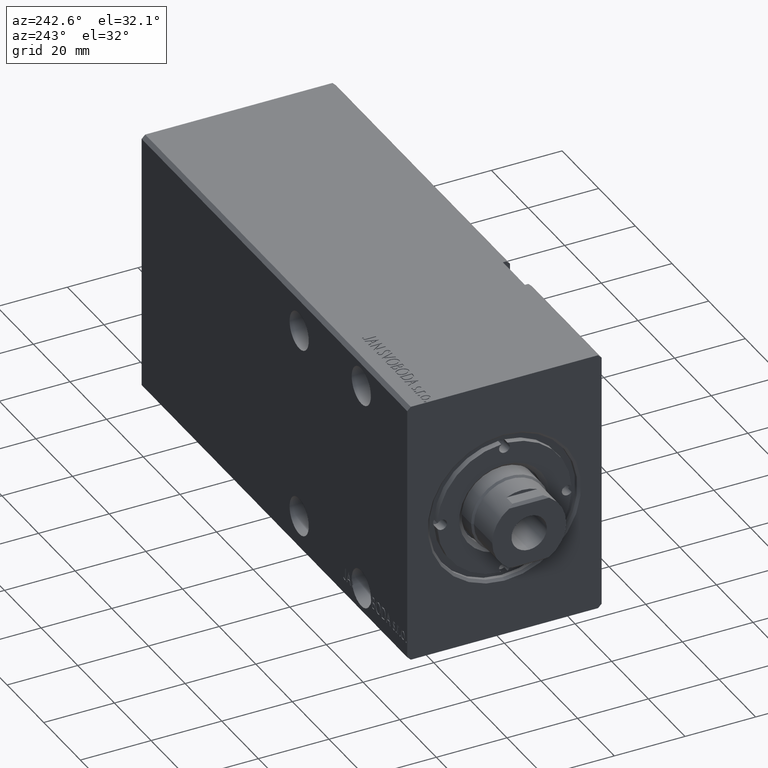
[diagram: clean part render]
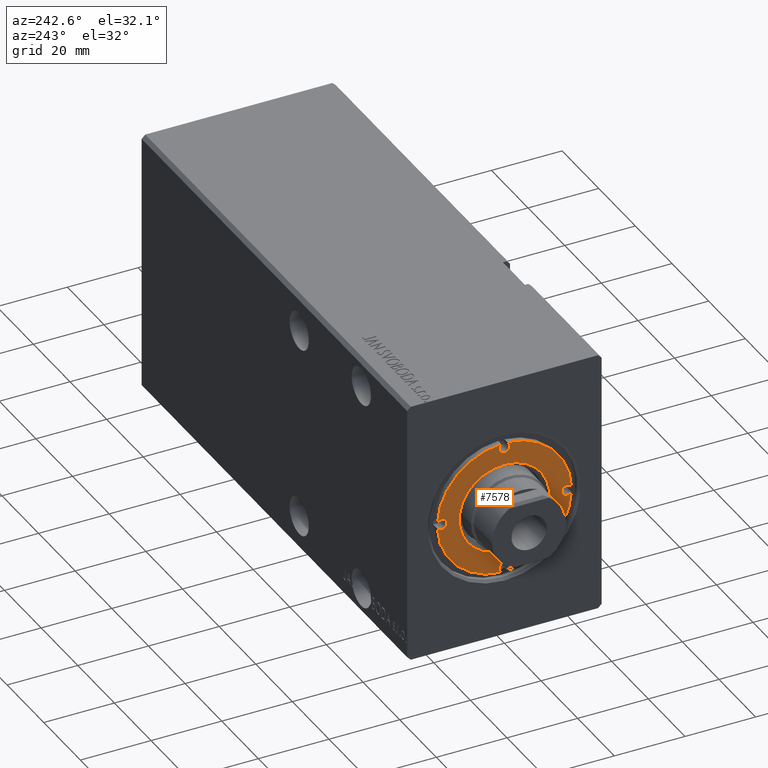
[diagram: same view with one face highlighted and labeled with its STEP entity id]
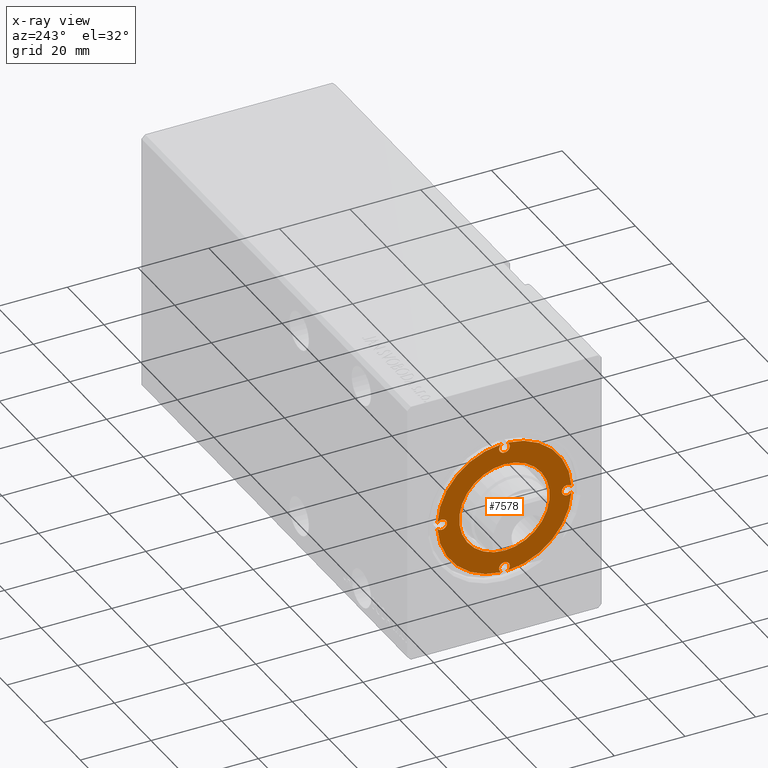
[diagram: x-ray of the same camera — body ghosted, the highlighted face saturated]
A machine part, auxiliary view. The second image highlights one B-rep face of the part: STEP entity #7578.
The next image is the same camera in x-ray: the body ghosted, the highlighted face saturated — about 0% of this face is hidden behind the body in this view.
In plain terms, the highlighted planar face has unit normal (-1, 0, 0).
Its self-contained STEP definition (entity closure, byte-faithful):
#218 = DIRECTION ( 'NONE',  ( 1.000000000000000000, 0.000000000000000000, 0.000000000000000000 ) ) ;
#245 = AXIS2_PLACEMENT_3D ( 'NONE', #20135, #32311, #24699 ) ;
#474 = EDGE_CURVE ( 'NONE', #15193, #19784, #24125, .T. ) ;
#1111 = AXIS2_PLACEMENT_3D ( 'NONE', #19153, #28732, #4135 ) ;
#1666 = VERTEX_POINT ( 'NONE', #23500 ) ;
#1744 = CARTESIAN_POINT ( 'NONE',  ( 0.000000000000000000, -17.75000000000000000, 11.79999999999999893 ) ) ;
#2462 = CARTESIAN_POINT ( 'NONE',  ( -18.98063380281688950, 0.8576365450261722589, 11.79999999999999893 ) ) ;
#2919 = EDGE_LOOP ( 'NONE', ( #13761, #28195 ) ) ;
#3009 = VERTEX_POINT ( 'NONE', #18647 ) ;
#3063 = CARTESIAN_POINT ( 'NONE',  ( 0.000000000000000000, -17.75000000000000000, 11.79999999999999893 ) ) ;
#3350 = ORIENTED_EDGE ( 'NONE', *, *, #12532, .F. ) ;
#3385 = CARTESIAN_POINT ( 'NONE',  ( -1.499999999999996891, 17.75000000000000000, 11.79999999999999893 ) ) ;
#3516 = EDGE_CURVE ( 'NONE', #3009, #17894, #10671, .T. ) ;
#3611 = CIRCLE ( 'NONE', #20193, 1.499999999999996891 ) ;
#3669 = DIRECTION ( 'NONE',  ( 1.000000000000000000, 0.000000000000000000, 0.000000000000000000 ) ) ;
#3676 = EDGE_CURVE ( 'NONE', #18181, #1666, #28565, .T. ) ;
#3931 = ORIENTED_EDGE ( 'NONE', *, *, #3676, .F. ) ;
#4135 = DIRECTION ( 'NONE',  ( 1.000000000000000000, 0.000000000000000000, 0.000000000000000000 ) ) ;
#4391 = CARTESIAN_POINT ( 'NONE',  ( 0.000000000000000000, 0.000000000000000000, 11.79999999999999893 ) ) ;
#4835 = EDGE_CURVE ( 'NONE', #5453, #1666, #19994, .T. ) ;
#5119 = DIRECTION ( 'NONE',  ( 1.000000000000000000, 0.000000000000000000, 0.000000000000000000 ) ) ;
#5453 = VERTEX_POINT ( 'NONE', #24728 ) ;
#5499 = CARTESIAN_POINT ( 'NONE',  ( 0.000000000000000000, 0.000000000000000000, 11.79999999999999893 ) ) ;
#5810 = DIRECTION ( 'NONE',  ( -0.000000000000000000, -0.000000000000000000, 1.000000000000000000 ) ) ;
#6115 = VERTEX_POINT ( 'NONE', #38730 ) ;
#6345 = CARTESIAN_POINT ( 'NONE',  ( 0.000000000000000000, 0.000000000000000000, 11.79999999999999893 ) ) ;
#6617 = CIRCLE ( 'NONE', #20685, 1.499999999999997780 ) ;
#6730 = CIRCLE ( 'NONE', #9922, 1.499999999999996891 ) ;
#6777 = AXIS2_PLACEMENT_3D ( 'NONE', #12609, #5810, #33983 ) ;
#6890 = AXIS2_PLACEMENT_3D ( 'NONE', #10895, #33097, #32889 ) ;
#6982 = EDGE_CURVE ( 'NONE', #10158, #19784, #6617, .T. ) ;
#7223 = CARTESIAN_POINT ( 'NONE',  ( 0.000000000000000000, 0.000000000000000000, 11.79999999999999893 ) ) ;
#7578 = ADVANCED_FACE ( 'NONE', ( #11108, #35303 ), #7916, .T. ) ;
#7916 = PLANE ( 'NONE',  #245 ) ;
#8090 = CARTESIAN_POINT ( 'NONE',  ( -0.8576365450261641543, -18.98063380281689305, 11.79999999999999893 ) ) ;
#8660 = AXIS2_PLACEMENT_3D ( 'NONE', #23868, #12064, #36051 ) ;
#9285 = DIRECTION ( 'NONE',  ( -0.000000000000000000, -0.000000000000000000, 1.000000000000000000 ) ) ;
#9357 = EDGE_CURVE ( 'NONE', #17419, #6115, #19814, .T. ) ;
#9571 = ORIENTED_EDGE ( 'NONE', *, *, #474, .T. ) ;
#9596 = EDGE_CURVE ( 'NONE', #6115, #17419, #35113, .T. ) ;
#9916 = VERTEX_POINT ( 'NONE', #30637 ) ;
#9922 = AXIS2_PLACEMENT_3D ( 'NONE', #1744, #23113, #5119 ) ;
#9995 = CARTESIAN_POINT ( 'NONE',  ( 0.000000000000000000, 0.000000000000000000, 11.79999999999999893 ) ) ;
#10026 = EDGE_CURVE ( 'NONE', #39485, #11599, #30123, .T. ) ;
#10158 = VERTEX_POINT ( 'NONE', #37791 ) ;
#10364 = DIRECTION ( 'NONE',  ( 0.000000000000000000, 0.000000000000000000, 1.000000000000000000 ) ) ;
#10524 = VERTEX_POINT ( 'NONE', #24542 ) ;
#10671 = CIRCLE ( 'NONE', #20921, 19.00000000000000000 ) ;
#10895 = CARTESIAN_POINT ( 'NONE',  ( 0.000000000000000000, 17.75000000000000000, 11.79999999999999893 ) ) ;
#11108 = FACE_OUTER_BOUND ( 'NONE', #35033, .T. ) ;
#11286 = CIRCLE ( 'NONE', #32981, 1.499999999999997780 ) ;
#11599 = VERTEX_POINT ( 'NONE', #27320 ) ;
#11671 = DIRECTION ( 'NONE',  ( 1.000000000000000000, 0.000000000000000000, 0.000000000000000000 ) ) ;
#11848 = AXIS2_PLACEMENT_3D ( 'NONE', #12297, #9285, #21304 ) ;
#12064 = DIRECTION ( 'NONE',  ( -0.000000000000000000, -0.000000000000000000, 1.000000000000000000 ) ) ;
#12155 = AXIS2_PLACEMENT_3D ( 'NONE', #5499, #39065, #39467 ) ;
#12237 = EDGE_CURVE ( 'NONE', #10524, #17208, #30992, .T. ) ;
#12297 = CARTESIAN_POINT ( 'NONE',  ( 17.75000000000000000, 0.000000000000000000, 11.79999999999999893 ) ) ;
#12532 = EDGE_CURVE ( 'NONE', #11599, #17208, #6730, .T. ) ;
#12609 = CARTESIAN_POINT ( 'NONE',  ( -17.75000000000000000, 0.000000000000000000, 11.79999999999999893 ) ) ;
#12707 = EDGE_CURVE ( 'NONE', #5453, #10158, #35460, .T. ) ;
#12745 = DIRECTION ( 'NONE',  ( 0.000000000000000000, 0.000000000000000000, 1.000000000000000000 ) ) ;
#13167 = ORIENTED_EDGE ( 'NONE', *, *, #3516, .T. ) ;
#13761 = ORIENTED_EDGE ( 'NONE', *, *, #9357, .T. ) ;
#13926 = EDGE_CURVE ( 'NONE', #15193, #39485, #3611, .T. ) ;
#14160 = AXIS2_PLACEMENT_3D ( 'NONE', #3063, #24431, #28044 ) ;
#15013 = ORIENTED_EDGE ( 'NONE', *, *, #6982, .F. ) ;
#15193 = VERTEX_POINT ( 'NONE', #39160 ) ;
#16001 = AXIS2_PLACEMENT_3D ( 'NONE', #33070, #20299, #11671 ) ;
#16064 = CARTESIAN_POINT ( 'NONE',  ( 0.000000000000000000, -17.75000000000000000, 11.79999999999999893 ) ) ;
#17208 = VERTEX_POINT ( 'NONE', #8090 ) ;
#17419 = VERTEX_POINT ( 'NONE', #19606 ) ;
#17608 = CIRCLE ( 'NONE', #8660, 1.499999999999996891 ) ;
#17894 = VERTEX_POINT ( 'NONE', #2462 ) ;
#18181 = VERTEX_POINT ( 'NONE', #38559 ) ;
#18383 = VERTEX_POINT ( 'NONE', #3385 ) ;
#18647 = CARTESIAN_POINT ( 'NONE',  ( -0.8576365450261700385, 18.98063380281688950, 11.79999999999999893 ) ) ;
#19008 = DIRECTION ( 'NONE',  ( 1.000000000000000000, 0.000000000000000000, 0.000000000000000000 ) ) ;
#19153 = CARTESIAN_POINT ( 'NONE',  ( 0.000000000000000000, 17.75000000000000000, 11.79999999999999893 ) ) ;
#19207 = CARTESIAN_POINT ( 'NONE',  ( 17.75000000000000000, 0.000000000000000000, 11.79999999999999893 ) ) ;
#19248 = DIRECTION ( 'NONE',  ( 1.000000000000000000, 0.000000000000000000, 0.000000000000000000 ) ) ;
#19606 = CARTESIAN_POINT ( 'NONE',  ( 12.79999999999997407, 0.000000000000000000, 11.79999999999999893 ) ) ;
#19784 = VERTEX_POINT ( 'NONE', #20712 ) ;
#19814 = CIRCLE ( 'NONE', #16001, 12.79999999999997407 ) ;
#19994 = CIRCLE ( 'NONE', #38496, 19.00000000000000000 ) ;
#20135 = CARTESIAN_POINT ( 'NONE',  ( 0.000000000000000000, 0.000000000000000000, 11.79999999999999893 ) ) ;
#20193 = AXIS2_PLACEMENT_3D ( 'NONE', #16064, #28065, #3669 ) ;
#20221 = ORIENTED_EDGE ( 'NONE', *, *, #10026, .F. ) ;
#20299 = DIRECTION ( 'NONE',  ( -0.000000000000000000, -0.000000000000000000, -1.000000000000000000 ) ) ;
#20685 = AXIS2_PLACEMENT_3D ( 'NONE', #19207, #33980, #218 ) ;
#20712 = CARTESIAN_POINT ( 'NONE',  ( 18.98063380281690016, -0.8576365450261579371, 11.79999999999999893 ) ) ;
#20921 = AXIS2_PLACEMENT_3D ( 'NONE', #6345, #12745, #27958 ) ;
#21304 = DIRECTION ( 'NONE',  ( 1.000000000000000000, 0.000000000000000000, 0.000000000000000000 ) ) ;
#22507 = EDGE_CURVE ( 'NONE', #18383, #18181, #17608, .T. ) ;
#22682 = ORIENTED_EDGE ( 'NONE', *, *, #4835, .T. ) ;
#22836 = CARTESIAN_POINT ( 'NONE',  ( -17.75000000000000000, 0.000000000000000000, 11.79999999999999893 ) ) ;
#23113 = DIRECTION ( 'NONE',  ( -0.000000000000000000, -0.000000000000000000, 1.000000000000000000 ) ) ;
#23500 = CARTESIAN_POINT ( 'NONE',  ( 0.8576365450261712597, 18.98063380281688950, 11.79999999999999893 ) ) ;
#23868 = CARTESIAN_POINT ( 'NONE',  ( 0.000000000000000000, 17.75000000000000000, 11.79999999999999893 ) ) ;
#24125 = CIRCLE ( 'NONE', #33061, 19.00000000000000000 ) ;
#24132 = CIRCLE ( 'NONE', #6890, 1.499999999999996891 ) ;
#24431 = DIRECTION ( 'NONE',  ( -0.000000000000000000, -0.000000000000000000, 1.000000000000000000 ) ) ;
#24542 = CARTESIAN_POINT ( 'NONE',  ( -18.98063380281689305, -0.8576365450261700385, 11.79999999999999893 ) ) ;
#24699 = DIRECTION ( 'NONE',  ( 1.000000000000000000, 0.000000000000000000, -0.000000000000000000 ) ) ;
#24728 = CARTESIAN_POINT ( 'NONE',  ( 18.98063380281690016, 0.8576365450261579371, 11.79999999999999893 ) ) ;
#24825 = DIRECTION ( 'NONE',  ( 1.000000000000000000, 0.000000000000000000, 0.000000000000000000 ) ) ;
#25477 = CARTESIAN_POINT ( 'NONE',  ( 1.499999999999996891, -17.75000000000000000, 11.79999999999999893 ) ) ;
#26898 = ORIENTED_EDGE ( 'NONE', *, *, #22507, .F. ) ;
#27278 = EDGE_CURVE ( 'NONE', #3009, #18383, #24132, .T. ) ;
#27320 = CARTESIAN_POINT ( 'NONE',  ( -1.499999999999996891, -17.75000000000000000, 11.79999999999999893 ) ) ;
#27958 = DIRECTION ( 'NONE',  ( 1.000000000000000000, 0.000000000000000000, 0.000000000000000000 ) ) ;
#28044 = DIRECTION ( 'NONE',  ( 1.000000000000000000, 0.000000000000000000, 0.000000000000000000 ) ) ;
#28065 = DIRECTION ( 'NONE',  ( -0.000000000000000000, -0.000000000000000000, 1.000000000000000000 ) ) ;
#28195 = ORIENTED_EDGE ( 'NONE', *, *, #9596, .T. ) ;
#28544 = EDGE_CURVE ( 'NONE', #9916, #17894, #35518, .T. ) ;
#28565 = CIRCLE ( 'NONE', #1111, 1.499999999999996891 ) ;
#28732 = DIRECTION ( 'NONE',  ( -0.000000000000000000, -0.000000000000000000, 1.000000000000000000 ) ) ;
#29520 = EDGE_CURVE ( 'NONE', #10524, #9916, #11286, .T. ) ;
#29901 = ORIENTED_EDGE ( 'NONE', *, *, #27278, .F. ) ;
#30123 = CIRCLE ( 'NONE', #14160, 1.499999999999996891 ) ;
#30637 = CARTESIAN_POINT ( 'NONE',  ( -16.25000000000000000, 0.000000000000000000, 11.79999999999999893 ) ) ;
#30992 = CIRCLE ( 'NONE', #36742, 19.00000000000000000 ) ;
#32024 = DIRECTION ( 'NONE',  ( 1.000000000000000000, 0.000000000000000000, 0.000000000000000000 ) ) ;
#32311 = DIRECTION ( 'NONE',  ( 0.000000000000000000, 0.000000000000000000, 1.000000000000000000 ) ) ;
#32889 = DIRECTION ( 'NONE',  ( 1.000000000000000000, 0.000000000000000000, 0.000000000000000000 ) ) ;
#32981 = AXIS2_PLACEMENT_3D ( 'NONE', #22836, #35022, #32024 ) ;
#33061 = AXIS2_PLACEMENT_3D ( 'NONE', #4391, #10364, #19008 ) ;
#33070 = CARTESIAN_POINT ( 'NONE',  ( 0.000000000000000000, 0.000000000000000000, 11.79999999999999893 ) ) ;
#33097 = DIRECTION ( 'NONE',  ( -0.000000000000000000, -0.000000000000000000, 1.000000000000000000 ) ) ;
#33980 = DIRECTION ( 'NONE',  ( -0.000000000000000000, -0.000000000000000000, 1.000000000000000000 ) ) ;
#33983 = DIRECTION ( 'NONE',  ( 1.000000000000000000, 0.000000000000000000, 0.000000000000000000 ) ) ;
#34396 = DIRECTION ( 'NONE',  ( 0.000000000000000000, 0.000000000000000000, 1.000000000000000000 ) ) ;
#35008 = DIRECTION ( 'NONE',  ( 0.000000000000000000, 0.000000000000000000, 1.000000000000000000 ) ) ;
#35022 = DIRECTION ( 'NONE',  ( -0.000000000000000000, -0.000000000000000000, 1.000000000000000000 ) ) ;
#35033 = EDGE_LOOP ( 'NONE', ( #36715, #38833, #3350, #20221, #39258, #9571, #15013, #36854, #22682, #3931, #26898, #29901, #13167, #39295 ) ) ;
#35113 = CIRCLE ( 'NONE', #12155, 12.79999999999997407 ) ;
#35303 = FACE_BOUND ( 'NONE', #2919, .T. ) ;
#35460 = CIRCLE ( 'NONE', #11848, 1.499999999999997780 ) ;
#35518 = CIRCLE ( 'NONE', #6777, 1.499999999999997780 ) ;
#36051 = DIRECTION ( 'NONE',  ( 1.000000000000000000, 0.000000000000000000, 0.000000000000000000 ) ) ;
#36715 = ORIENTED_EDGE ( 'NONE', *, *, #29520, .F. ) ;
#36742 = AXIS2_PLACEMENT_3D ( 'NONE', #7223, #35008, #19248 ) ;
#36854 = ORIENTED_EDGE ( 'NONE', *, *, #12707, .F. ) ;
#37791 = CARTESIAN_POINT ( 'NONE',  ( 16.25000000000000000, 1.836970198721027222E-16, 11.79999999999999893 ) ) ;
#38496 = AXIS2_PLACEMENT_3D ( 'NONE', #9995, #34396, #24825 ) ;
#38559 = CARTESIAN_POINT ( 'NONE',  ( 1.499999999999996891, 17.75000000000000000, 11.79999999999999893 ) ) ;
#38730 = CARTESIAN_POINT ( 'NONE',  ( -12.79999999999997407, 1.567547902908609029E-15, 11.79999999999999893 ) ) ;
#38833 = ORIENTED_EDGE ( 'NONE', *, *, #12237, .T. ) ;
#39065 = DIRECTION ( 'NONE',  ( -0.000000000000000000, -0.000000000000000000, -1.000000000000000000 ) ) ;
#39160 = CARTESIAN_POINT ( 'NONE',  ( 0.8576365450261690393, -18.98063380281689305, 11.79999999999999893 ) ) ;
#39258 = ORIENTED_EDGE ( 'NONE', *, *, #13926, .F. ) ;
#39295 = ORIENTED_EDGE ( 'NONE', *, *, #28544, .F. ) ;
#39467 = DIRECTION ( 'NONE',  ( 1.000000000000000000, 0.000000000000000000, 0.000000000000000000 ) ) ;
#39485 = VERTEX_POINT ( 'NONE', #25477 ) ;